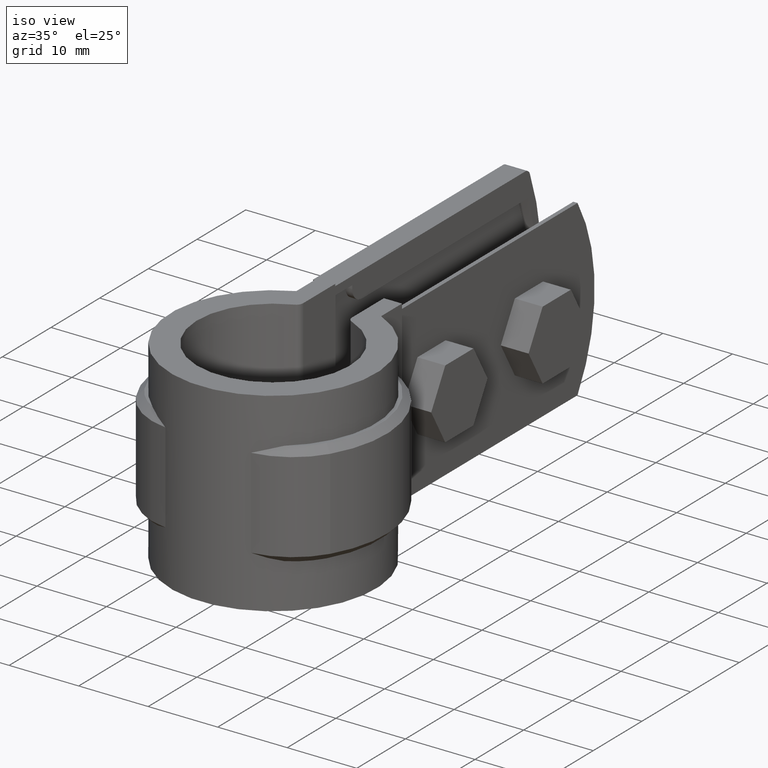
[diagram: clean part render]
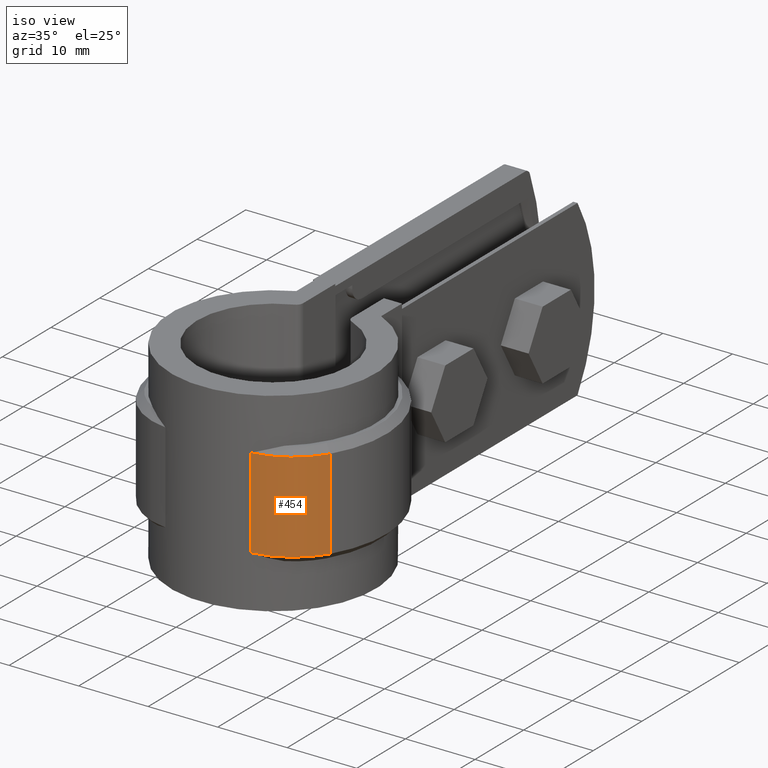
[diagram: same view with one face highlighted and labeled with its STEP entity id]
A machine part, iso view. The second image highlights one B-rep face of the part: STEP entity #454.
In plain terms, the highlighted cylindrical surface (partial cylindrical patch) has radius 10.6 mm, axis along (0, 0, -1).
Its self-contained STEP definition (entity closure, byte-faithful):
#454 = ADVANCED_FACE( '', ( #897 ), #898, .T. );
#897 = FACE_OUTER_BOUND( '', #2009, .T. );
#898 = CYLINDRICAL_SURFACE( '', #2010, 10.6000000000000 );
#2009 = EDGE_LOOP( '', ( #4555, #4556, #4557, #4558 ) );
#2010 = AXIS2_PLACEMENT_3D( '', #4559, #4560, #4561 );
#4555 = ORIENTED_EDGE( '', *, *, #6828, .T. );
#4556 = ORIENTED_EDGE( '', *, *, #6816, .T. );
#4557 = ORIENTED_EDGE( '', *, *, #6803, .F. );
#4558 = ORIENTED_EDGE( '', *, *, #6829, .T. );
#4559 = CARTESIAN_POINT( '', ( 4.85506179157383, -2.88000000000001, -20.0000000000000 ) );
#4560 = DIRECTION( '', ( 0.000000000000000, 0.000000000000000, -1.00000000000000 ) );
#4561 = DIRECTION( '', ( 0.313942751615882, 0.949441914341182, 0.000000000000000 ) );
#6803 = EDGE_CURVE( '', #7917, #7919, #7920, .T. );
#6816 = EDGE_CURVE( '', #7938, #7919, #7942, .F. );
#6828 = EDGE_CURVE( '', #7946, #7938, #7960, .T. );
#6829 = EDGE_CURVE( '', #7917, #7946, #7961, .T. );
#7917 = VERTEX_POINT( '', #10858 );
#7919 = VERTEX_POINT( '', #10863 );
#7920 = LINE( '', #10864, #10865 );
#7938 = VERTEX_POINT( '', #10895 );
#7942 = CIRCLE( '', #10900, 10.6000000000000 );
#7946 = VERTEX_POINT( '', #10907 );
#7960 = LINE( '', #10928, #10929 );
#7961 = CIRCLE( '', #10930, 10.6000000000000 );
#10858 = CARTESIAN_POINT( '', ( 6.15181138856632, -13.4003821452788, -19.0000000000000 ) );
#10863 = CARTESIAN_POINT( '', ( 6.15181138856632, -13.4003821452788, -6.00000000000000 ) );
#10864 = CARTESIAN_POINT( '', ( 6.15181138856632, -13.4003821452788, -12.5000000000000 ) );
#10865 = VECTOR( '', #12766, 1000.00000000000 );
#10895 = CARTESIAN_POINT( '', ( 13.9717411521907, -8.28797165633305, -5.99999999999999 ) );
#10900 = AXIS2_PLACEMENT_3D( '', #12786, #12787, #12788 );
#10907 = CARTESIAN_POINT( '', ( 13.9717411521907, -8.28797165633305, -19.0000000000000 ) );
#10928 = CARTESIAN_POINT( '', ( 13.9717411521907, -8.28797165633305, -20.0000000000000 ) );
#10929 = VECTOR( '', #12808, 1000.00000000000 );
#10930 = AXIS2_PLACEMENT_3D( '', #12809, #12810, #12811 );
#12766 = DIRECTION( '', ( 0.000000000000000, 0.000000000000000, 1.00000000000000 ) );
#12786 = CARTESIAN_POINT( '', ( 4.85506179157383, -2.88000000000001, -6.00000000000000 ) );
#12787 = DIRECTION( '', ( 0.000000000000000, 0.000000000000000, 1.00000000000000 ) );
#12788 = DIRECTION( '', ( 1.00000000000000, 0.000000000000000, 0.000000000000000 ) );
#12808 = DIRECTION( '', ( 0.000000000000000, 0.000000000000000, 1.00000000000000 ) );
#12809 = CARTESIAN_POINT( '', ( 4.85506179157383, -2.88000000000001, -19.0000000000000 ) );
#12810 = DIRECTION( '', ( 0.000000000000000, 0.000000000000000, 1.00000000000000 ) );
#12811 = DIRECTION( '', ( 1.00000000000000, 0.000000000000000, 0.000000000000000 ) );